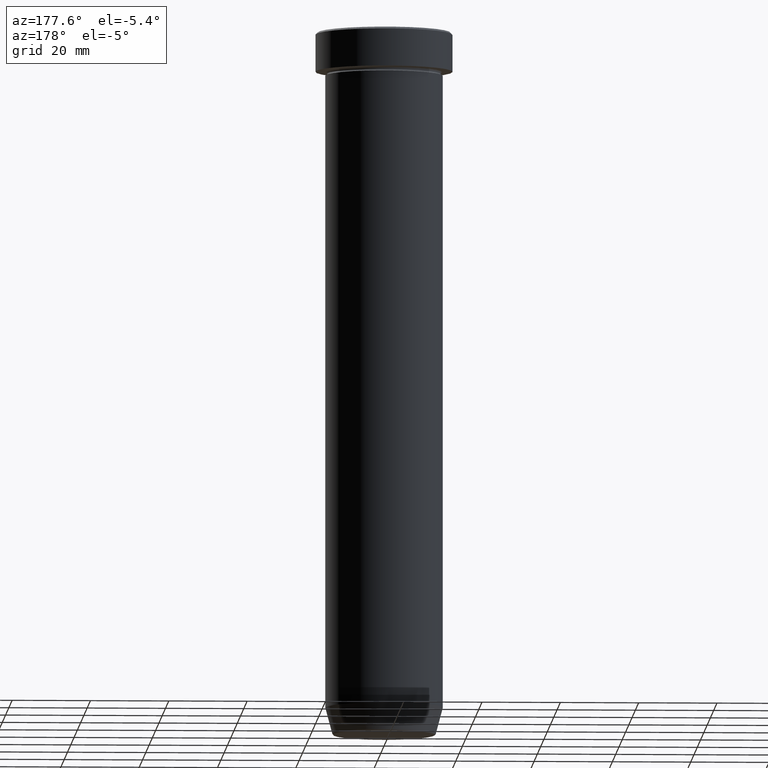
[diagram: clean part render]
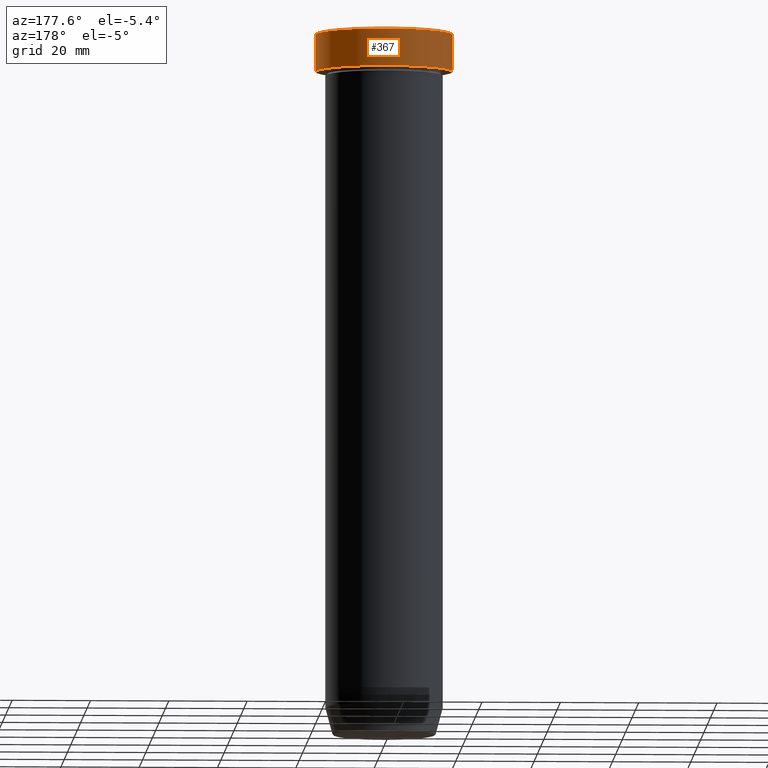
[diagram: same view with one face highlighted and labeled with its STEP entity id]
A machine part, auxiliary view. The second image highlights one B-rep face of the part: STEP entity #367.
In plain terms, the highlighted cylindrical surface (partial cylindrical patch) has radius 17.5 mm, axis along (-0, -0, 1).
Its self-contained STEP definition (entity closure, byte-faithful):
#3 = VERTEX_POINT ( 'NONE', #594 ) ;
#39 = DIRECTION ( 'NONE',  ( 0.000000000000000000, 0.000000000000000000, -1.000000000000000000 ) ) ;
#49 = ORIENTED_EDGE ( 'NONE', *, *, #76, .F. ) ;
#56 = EDGE_CURVE ( 'NONE', #131, #295, #440, .T. ) ;
#76 = EDGE_CURVE ( 'NONE', #3, #295, #126, .T. ) ;
#84 = DIRECTION ( 'NONE',  ( -0.000000000000000000, -0.000000000000000000, 1.000000000000000000 ) ) ;
#108 = ORIENTED_EDGE ( 'NONE', *, *, #56, .T. ) ;
#110 = DIRECTION ( 'NONE',  ( 1.000000000000000000, 0.000000000000000000, 0.000000000000000000 ) ) ;
#122 = CYLINDRICAL_SURFACE ( 'NONE', #485, 17.50000000000000000 ) ;
#126 = LINE ( 'NONE', #363, #138 ) ;
#131 = VERTEX_POINT ( 'NONE', #572 ) ;
#138 = VECTOR ( 'NONE', #84, 1000.000000000000000 ) ;
#139 = VERTEX_POINT ( 'NONE', #273 ) ;
#148 = EDGE_CURVE ( 'NONE', #3, #139, #226, .T. ) ;
#151 = CARTESIAN_POINT ( 'NONE',  ( 0.000000000000000000, 0.000000000000000000, -9.999999999999998224 ) ) ;
#156 = ORIENTED_EDGE ( 'NONE', *, *, #148, .T. ) ;
#190 = ORIENTED_EDGE ( 'NONE', *, *, #236, .T. ) ;
#213 = CARTESIAN_POINT ( 'NONE',  ( -17.50000000000000000, 2.143131898507868248E-15, 0.000000000000000000 ) ) ;
#216 = CARTESIAN_POINT ( 'NONE',  ( 0.000000000000000000, 0.000000000000000000, -0.5000000000000073275 ) ) ;
#226 = CIRCLE ( 'NONE', #381, 17.50000000000000000 ) ;
#236 = EDGE_CURVE ( 'NONE', #139, #131, #309, .T. ) ;
#273 = CARTESIAN_POINT ( 'NONE',  ( -17.50000000000000000, 2.143131898507868248E-15, -9.999999999999998224 ) ) ;
#276 = DIRECTION ( 'NONE',  ( -0.000000000000000000, -0.000000000000000000, 1.000000000000000000 ) ) ;
#295 = VERTEX_POINT ( 'NONE', #521 ) ;
#309 = LINE ( 'NONE', #213, #464 ) ;
#318 = FACE_OUTER_BOUND ( 'NONE', #469, .T. ) ;
#363 = CARTESIAN_POINT ( 'NONE',  ( 17.50000000000000000, 0.000000000000000000, 0.000000000000000000 ) ) ;
#367 = ADVANCED_FACE ( 'NONE', ( #318 ), #122, .T. ) ;
#381 = AXIS2_PLACEMENT_3D ( 'NONE', #151, #515, #110 ) ;
#383 = AXIS2_PLACEMENT_3D ( 'NONE', #216, #39, #443 ) ;
#440 = CIRCLE ( 'NONE', #383, 17.50000000000000000 ) ;
#443 = DIRECTION ( 'NONE',  ( 1.000000000000000000, 0.000000000000000000, 0.000000000000000000 ) ) ;
#464 = VECTOR ( 'NONE', #573, 1000.000000000000000 ) ;
#469 = EDGE_LOOP ( 'NONE', ( #156, #190, #108, #49 ) ) ;
#485 = AXIS2_PLACEMENT_3D ( 'NONE', #527, #276, #493 ) ;
#493 = DIRECTION ( 'NONE',  ( 1.000000000000000000, 0.000000000000000000, 0.000000000000000000 ) ) ;
#515 = DIRECTION ( 'NONE',  ( -0.000000000000000000, -0.000000000000000000, 1.000000000000000000 ) ) ;
#521 = CARTESIAN_POINT ( 'NONE',  ( 17.50000000000000000, 0.000000000000000000, -0.5000000000000073275 ) ) ;
#527 = CARTESIAN_POINT ( 'NONE',  ( 0.000000000000000000, 0.000000000000000000, 0.000000000000000000 ) ) ;
#572 = CARTESIAN_POINT ( 'NONE',  ( -17.50000000000000000, 2.143131898507868248E-15, -0.5000000000000073275 ) ) ;
#573 = DIRECTION ( 'NONE',  ( -0.000000000000000000, -0.000000000000000000, 1.000000000000000000 ) ) ;
#594 = CARTESIAN_POINT ( 'NONE',  ( 17.50000000000000000, 0.000000000000000000, -9.999999999999998224 ) ) ;